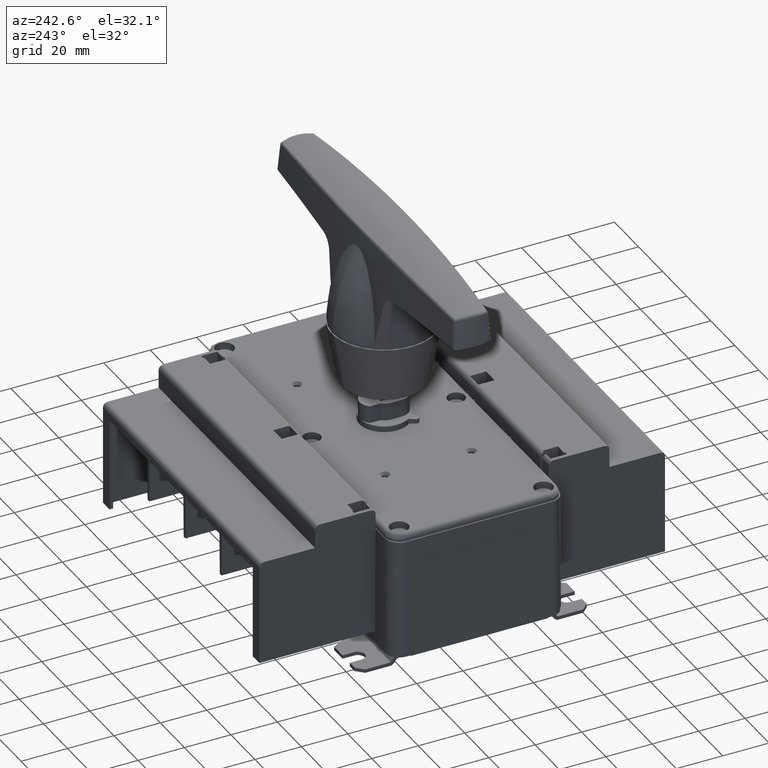
[diagram: clean part render]
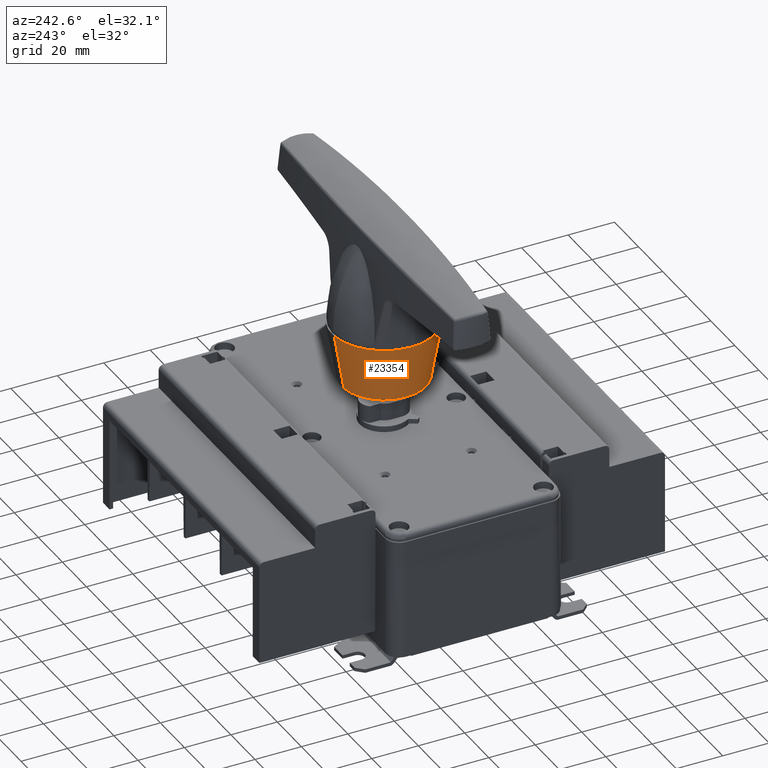
[diagram: same view with one face highlighted and labeled with its STEP entity id]
A machine part, auxiliary view. The second image highlights one B-rep face of the part: STEP entity #23354.
In plain terms, the highlighted conical surface has half-angle 10 deg.
Its self-contained STEP definition (entity closure, byte-faithful):
#1744 = DIRECTION ( 'NONE',  ( 4.755382578733919800E-032, 1.541976423090494900E-016, 1.000000000000000000 ) ) ;
#2370 = DIRECTION ( 'NONE',  ( -4.755382578733919800E-032, -1.541976423090494900E-016, -1.000000000000000000 ) ) ;
#2834 = CONICAL_SURFACE ( 'NONE', #26401, 22.50000000000000000, 0.1745329251994331100 ) ;
#3011 = VECTOR ( 'NONE', #8482, 1000.000000000000000 ) ;
#3104 = ORIENTED_EDGE ( 'NONE', *, *, #6402, .F. ) ;
#3259 = VERTEX_POINT ( 'NONE', #30182 ) ;
#6402 = EDGE_CURVE ( 'NONE', #3259, #36551, #29522, .T. ) ;
#6765 = DIRECTION ( 'NONE',  ( 4.683137632076350900E-032, -0.1736481776669303600, 0.9848077530122080200 ) ) ;
#8482 = DIRECTION ( 'NONE',  ( 2.126576849575778100E-017, 0.1736481776669306400, 0.9848077530122080200 ) ) ;
#9615 = DIRECTION ( 'NONE',  ( 0.0000000000000000000, -1.000000000000000000, 0.0000000000000000000 ) ) ;
#13499 = EDGE_CURVE ( 'NONE', #3259, #41956, #21152, .T. ) ;
#13750 = EDGE_CURVE ( 'NONE', #41956, #40083, #25286, .T. ) ;
#15530 = EDGE_LOOP ( 'NONE', ( #3104, #37992, #37468, #21919 ) ) ;
#19207 = CARTESIAN_POINT ( 'NONE',  ( -6.541103756446940300, 0.5213923284127449700, 32.50000000000000000 ) ) ;
#19353 = CARTESIAN_POINT ( 'NONE',  ( -6.541103756446940300, 0.5213923284127489600, 57.50000000000000000 ) ) ;
#21152 = CIRCLE ( 'NONE', #27853, 18.09182548228839900 ) ;
#21755 = CARTESIAN_POINT ( 'NONE',  ( -6.541103756446940300, 0.5213923284127489600, 57.50000000000000000 ) ) ;
#21919 = ORIENTED_EDGE ( 'NONE', *, *, #35455, .T. ) ;
#22677 = VECTOR ( 'NONE', #6765, 1000.000000000000200 ) ;
#23354 = ADVANCED_FACE ( 'NONE', ( #30923 ), #2834, .T. ) ;
#25019 = CARTESIAN_POINT ( 'NONE',  ( -6.541103756446937600, 23.02139232841274800, 57.50000000000000000 ) ) ;
#25286 = LINE ( 'NONE', #39661, #22677 ) ;
#26336 = CARTESIAN_POINT ( 'NONE',  ( -6.541103756446937600, 23.02139232841274800, 57.50000000000000000 ) ) ;
#26401 = AXIS2_PLACEMENT_3D ( 'NONE', #21755, #1744, #34904 ) ;
#27853 = AXIS2_PLACEMENT_3D ( 'NONE', #19207, #39745, #9615 ) ;
#29522 = LINE ( 'NONE', #25019, #3011 ) ;
#30182 = CARTESIAN_POINT ( 'NONE',  ( -6.541103756446937600, 18.61321781070114400, 32.50000000000000000 ) ) ;
#30923 = FACE_OUTER_BOUND ( 'NONE', #15530, .T. ) ;
#31423 = CARTESIAN_POINT ( 'NONE',  ( -6.541103756446940300, -17.57043315387565500, 32.50000000000000000 ) ) ;
#32607 = DIRECTION ( 'NONE',  ( 0.0000000000000000000, -1.000000000000000000, 0.0000000000000000000 ) ) ;
#34904 = DIRECTION ( 'NONE',  ( 0.0000000000000000000, -1.000000000000000000, 0.0000000000000000000 ) ) ;
#35120 = AXIS2_PLACEMENT_3D ( 'NONE', #19353, #2370, #32607 ) ;
#35455 = EDGE_CURVE ( 'NONE', #40083, #36551, #41856, .T. ) ;
#36551 = VERTEX_POINT ( 'NONE', #26336 ) ;
#37468 = ORIENTED_EDGE ( 'NONE', *, *, #13750, .T. ) ;
#37992 = ORIENTED_EDGE ( 'NONE', *, *, #13499, .T. ) ;
#39661 = CARTESIAN_POINT ( 'NONE',  ( -6.541103756446940300, -21.97860767158725200, 57.50000000000000000 ) ) ;
#39745 = DIRECTION ( 'NONE',  ( 4.755382578733919800E-032, 1.541976423090494900E-016, 1.000000000000000000 ) ) ;
#40083 = VERTEX_POINT ( 'NONE', #40588 ) ;
#40588 = CARTESIAN_POINT ( 'NONE',  ( -6.541103756446940300, -21.97860767158725200, 57.50000000000000000 ) ) ;
#41856 = CIRCLE ( 'NONE', #35120, 22.50000000000000000 ) ;
#41956 = VERTEX_POINT ( 'NONE', #31423 ) ;